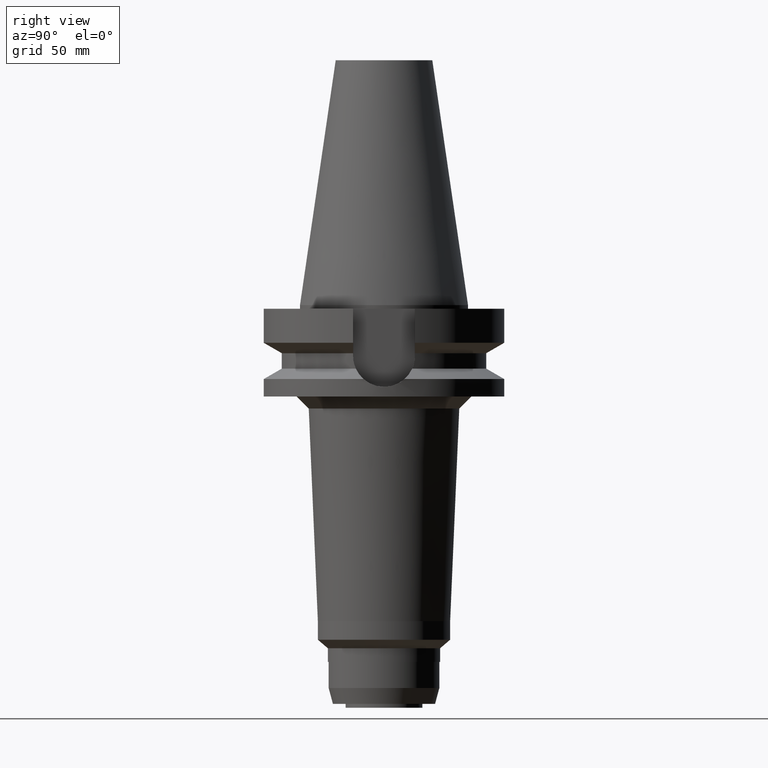
[diagram: clean part render]
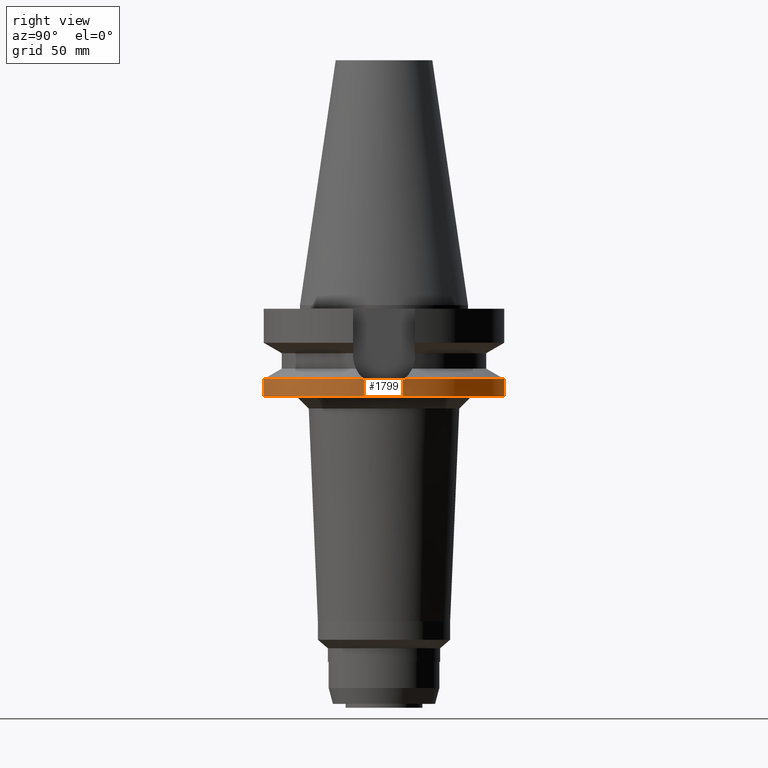
[diagram: same view with one face highlighted and labeled with its STEP entity id]
A machine part, right view. The second image highlights one B-rep face of the part: STEP entity #1799.
In plain terms, the highlighted cylindrical surface (partial cylindrical patch) has radius 50 mm, axis along (0, 0, -1).
Its self-contained STEP definition (entity closure, byte-faithful):
#488=CARTESIAN_POINT('',(0.E0,2.636174699845E-14,-3.8E1));
#489=DIRECTION('',(0.E0,0.E0,1.E0));
#490=DIRECTION('',(0.E0,-1.E0,0.E0));
#491=AXIS2_PLACEMENT_3D('',#488,#489,#490);
#520=CARTESIAN_POINT('',(4.926250064874E1,-8.556052234130E0,-3.073730776427E1));
#521=CARTESIAN_POINT('',(4.936651029720E1,-7.957204163268E0,-3.127174094411E1));
#522=CARTESIAN_POINT('',(4.956431371444E1,-6.687589262989E0,-3.220428471372E1));
#523=CARTESIAN_POINT('',(4.980477980380E1,-4.596124605548E0,-3.322680717224E1));
#524=CARTESIAN_POINT('',(4.996456427671E1,-2.307360176151E0,-3.386328318673E1));
#525=CARTESIAN_POINT('',(5.000000025975E1,-7.763195910518E-1,
-3.400000114470E1));
#526=CARTESIAN_POINT('',(5.000000025975E1,1.777329899603E-14,
-3.400000114470E1));
#531=CARTESIAN_POINT('',(5.000000025975E1,1.777329899603E-14,
-3.400000114470E1));
#532=CARTESIAN_POINT('',(5.000000025975E1,7.764292768517E-1,-3.400000114470E1));
#533=CARTESIAN_POINT('',(4.996455389117E1,2.307631114120E0,-3.386324315456E1));
#534=CARTESIAN_POINT('',(4.980475009345E1,4.596442502866E0,-3.322668616837E1));
#535=CARTESIAN_POINT('',(4.956428048457E1,6.687819308673E0,-3.220413504195E1));
#536=CARTESIAN_POINT('',(4.936649605489E1,7.957286165075E0,-3.127166776280E1));
#537=CARTESIAN_POINT('',(4.926250064874E1,8.556052234130E0,-3.073730776427E1));
#542=DIRECTION('',(0.E0,2.152361642122E-14,-1.E0));
#543=VECTOR('',#542,7.262692235730E0);
#544=CARTESIAN_POINT('',(0.E0,5.E1,-3.073730776427E1));
#545=LINE('',#544,#543);
#599=CARTESIAN_POINT('',(0.E0,0.E0,-3.073730776427E1));
#600=DIRECTION('',(0.E0,0.E0,-1.E0));
#601=DIRECTION('',(9.852500129747E-1,-1.711210446826E-1,0.E0));
#602=AXIS2_PLACEMENT_3D('',#599,#600,#601);
#643=DIRECTION('',(0.E0,-2.250196262218E-14,-1.E0));
#644=VECTOR('',#643,7.262692235730E0);
#645=CARTESIAN_POINT('',(0.E0,-5.E1,-3.073730776427E1));
#646=LINE('',#645,#644);
#668=CARTESIAN_POINT('',(0.E0,0.E0,-3.073730776427E1));
#669=DIRECTION('',(0.E0,0.E0,-1.E0));
#670=DIRECTION('',(0.E0,1.E0,0.E0));
#671=AXIS2_PLACEMENT_3D('',#668,#669,#670);
#1208=CARTESIAN_POINT('',(0.E0,-5.E1,-3.8E1));
#1209=CARTESIAN_POINT('',(0.E0,5.E1,-3.8E1));
#1210=VERTEX_POINT('',#1208);
#1211=VERTEX_POINT('',#1209);
#1212=VERTEX_POINT('',#531);
#1213=VERTEX_POINT('',#537);
#1214=VERTEX_POINT('',#520);
#1215=CARTESIAN_POINT('',(0.E0,5.E1,-3.073730776427E1));
#1216=VERTEX_POINT('',#1215);
#1217=CARTESIAN_POINT('',(0.E0,-5.E1,-3.073730776427E1));
#1218=VERTEX_POINT('',#1217);
#1779=CARTESIAN_POINT('',(0.E0,2.636174699845E-14,1.1526E2));
#1780=DIRECTION('',(0.E0,0.E0,-1.E0));
#1781=DIRECTION('',(0.E0,-1.E0,0.E0));
#1782=AXIS2_PLACEMENT_3D('',#1779,#1780,#1781);
#1783=CYLINDRICAL_SURFACE('',#1782,5.E1);
#1785=ORIENTED_EDGE('',*,*,#1784,.T.);
#1787=ORIENTED_EDGE('',*,*,#1786,.T.);
#1789=ORIENTED_EDGE('',*,*,#1788,.F.);
#1791=ORIENTED_EDGE('',*,*,#1790,.T.);
#1792=ORIENTED_EDGE('',*,*,#1768,.F.);
#1794=ORIENTED_EDGE('',*,*,#1793,.F.);
#1796=ORIENTED_EDGE('',*,*,#1795,.F.);
#1797=EDGE_LOOP('',(#1785,#1787,#1789,#1791,#1792,#1794,#1796));
#1798=FACE_OUTER_BOUND('',#1797,.F.);
#492=CIRCLE('',#491,5.E1);
#527=B_SPLINE_CURVE_WITH_KNOTS('',3,(#520,#521,#522,#523,#524,#525,#526),
.UNSPECIFIED.,.F.,.F.,(4,1,1,1,4),(0.E0,2.5E-1,5.E-1,7.5E-1,1.E0),
.UNSPECIFIED.);
#538=B_SPLINE_CURVE_WITH_KNOTS('',3,(#531,#532,#533,#534,#535,#536,#537),
.UNSPECIFIED.,.F.,.F.,(4,1,1,1,4),(0.E0,2.5E-1,5.E-1,7.5E-1,1.E0),
.UNSPECIFIED.);
#603=CIRCLE('',#602,5.E1);
#672=CIRCLE('',#671,5.E1);
#1768=EDGE_CURVE('',#1210,#1211,#492,.T.);
#1784=EDGE_CURVE('',#1214,#1212,#527,.T.);
#1786=EDGE_CURVE('',#1212,#1213,#538,.T.);
#1788=EDGE_CURVE('',#1216,#1213,#672,.T.);
#1790=EDGE_CURVE('',#1216,#1211,#545,.T.);
#1793=EDGE_CURVE('',#1218,#1210,#646,.T.);
#1795=EDGE_CURVE('',#1214,#1218,#603,.T.);
#1799=ADVANCED_FACE('',(#1798),#1783,.T.);